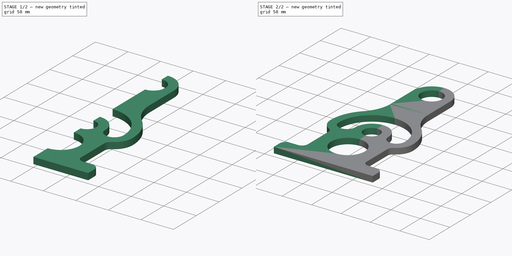
[diagram: build sequence overview — one tinted view per stage of 2, left to right]
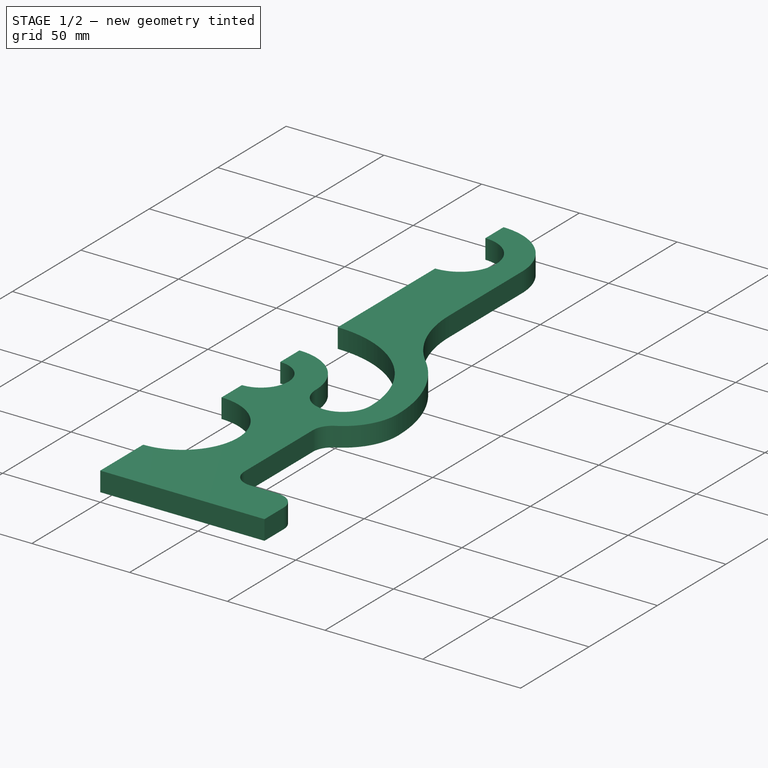
[diagram: stage 1 of 2 — iso view after this stage's code; geometry added in this stage tinted green]
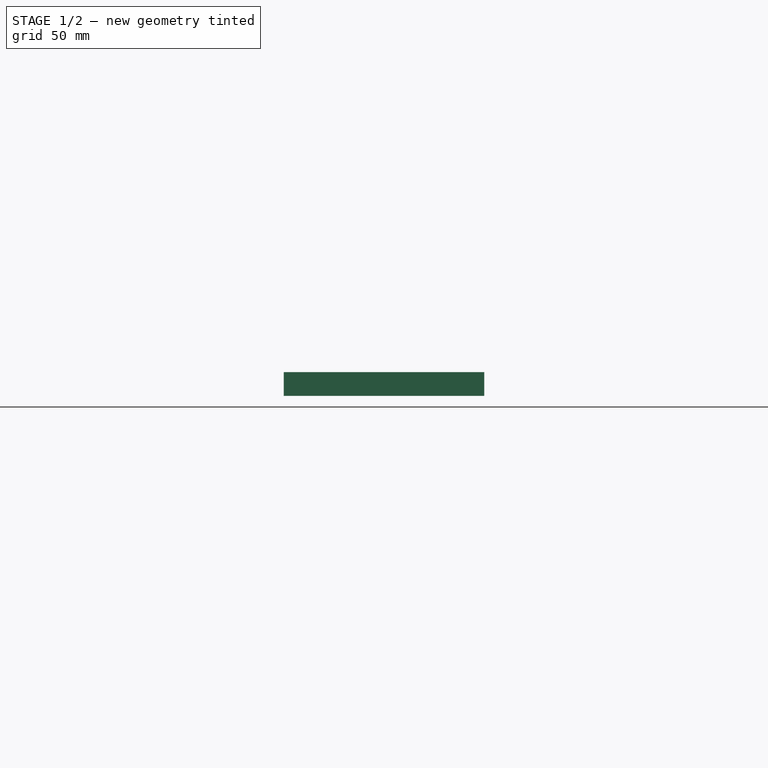
[diagram: stage 1 of 2 — front view after this stage's code; geometry added in this stage tinted green]
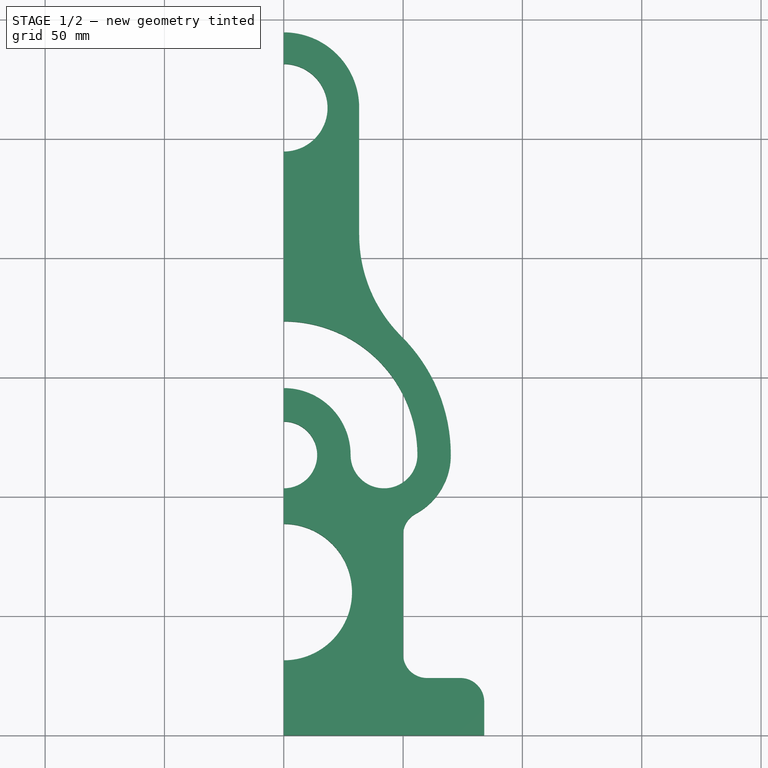
[diagram: stage 1 of 2 — top view after this stage's code; geometry added in this stage tinted green]
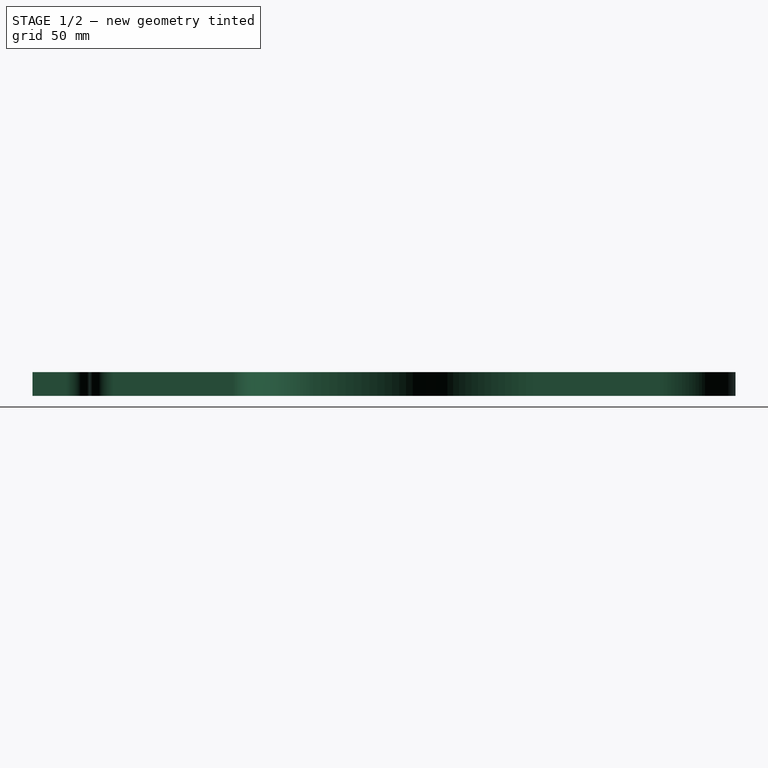
[diagram: stage 1 of 2 — right view after this stage's code; geometry added in this stage tinted green]
FCSTD DOCUMENT  (FreeCAD 0.18R14796 (Git))
Label: Page_16_Exercise 2D -08
License: All rights reserved
LicenseURL: http://en.wikipedia.org/wiki/All_rights_reserved
objects: Sketcher::SketchObject×1, PartDesign::Pad×1, PartDesign::Mirrored×1, PartDesign::Body×1
note: 5 computed .brp shape members not serialized (recipe doc carries the construction recipe); baked Part::Feature solids carry a one-line shape summary decoded from their .brp

FEATURE [Sketcher::SketchObject] Sketch
  MapMode = 5
  Support = -> [XY_Plane]
  expr: Constraints[19] = 168 / 2
  sketch-geometry (25):
    g0: LineSegment StartX=0 StartY=0 StartZ=0 EndX=84 EndY=0 EndZ=0
    g1: LineSegment StartX=84 StartY=0 StartZ=0 EndX=84 EndY=14 EndZ=0
    g2: LineSegment StartX=60 StartY=24 StartZ=0 EndX=74 EndY=24 EndZ=0
    g3: LineSegment StartX=50 StartY=34 StartZ=0 EndX=50 EndY=84.0336 EndZ=0
    g4: ArcOfCircle CenterX=0 CenterY=117.5 CenterZ=0 NormalX=0 NormalY=0 NormalZ=1 AngleXU=0 Radius=70 StartAngle=0 EndAngle=0.788915
    g5: ArcOfCircle CenterX=91.6 CenterY=209.747 CenterZ=0 NormalX=0 NormalY=0 NormalZ=1 AngleXU=0 Radius=60 StartAngle=3.14159 EndAngle=3.93051
    g6: LineSegment StartX=31.6 StartY=209.747 StartZ=0 EndX=31.6 EndY=263 EndZ=0
    g7: ArcOfCircle CenterX=0 CenterY=263 CenterZ=0 NormalX=0 NormalY=0 NormalZ=1 AngleXU=0 Radius=31.6 StartAngle=0 EndAngle=1.5708
    g8: LineSegment StartX=0 StartY=294.6 StartZ=0 EndX=0 EndY=281.35 EndZ=0
    g9: ArcOfCircle CenterX=0 CenterY=263 CenterZ=0 NormalX=0 NormalY=0 NormalZ=1 AngleXU=0 Radius=18.35 StartAngle=4.71239 EndAngle=7.85398
    g10: LineSegment StartX=0 StartY=244.65 StartZ=0 EndX=0 EndY=173.5 EndZ=0
    g11: ArcOfCircle CenterX=0 CenterY=117.5 CenterZ=0 NormalX=0 NormalY=0 NormalZ=1 AngleXU=0 Radius=56 StartAngle=0 EndAngle=1.5708
    g12: ArcOfCircle CenterX=42 CenterY=117.5 CenterZ=0 NormalX=0 NormalY=0 NormalZ=1 AngleXU=0 Radius=14 StartAngle=3.14159 EndAngle=6.28319
    g13: ArcOfCircle CenterX=0 CenterY=117.5 CenterZ=0 NormalX=0 NormalY=0 NormalZ=1 AngleXU=0 Radius=28 StartAngle=0 EndAngle=1.5708
    g14: LineSegment StartX=0 StartY=145.5 StartZ=0 EndX=0 EndY=131.5 EndZ=0
    g15: ArcOfCircle CenterX=0 CenterY=117.5 CenterZ=0 NormalX=0 NormalY=0 NormalZ=1 AngleXU=0 Radius=14 StartAngle=4.71239 EndAngle=7.85398
    g16: LineSegment StartX=0 StartY=103.5 StartZ=0 EndX=0 EndY=88.6 EndZ=0
    g17: ArcOfCircle CenterX=0 CenterY=60 CenterZ=0 NormalX=0 NormalY=0 NormalZ=1 AngleXU=0 Radius=28.6 StartAngle=4.71239 EndAngle=7.85398
    g18: LineSegment StartX=0 StartY=31.4 StartZ=0 EndX=0 EndY=0 EndZ=0
    g19: LineSegment [constr] StartX=0 StartY=117.5 StartZ=0 EndX=70 EndY=117.5 EndZ=0
    g20: ArcOfCircle CenterX=60 CenterY=34 CenterZ=0 NormalX=0 NormalY=0 NormalZ=1 AngleXU=0 Radius=10 StartAngle=3.14159 EndAngle=4.71239
    g21: ArcOfCircle CenterX=74 CenterY=14 CenterZ=0 NormalX=0 NormalY=0 NormalZ=1 AngleXU=0 Radius=10 StartAngle=0 EndAngle=1.5708
    g22: LineSegment [constr] StartX=28.6 StartY=60 StartZ=0 EndX=50 EndY=60 EndZ=0
    g23: ArcOfCircle CenterX=60 CenterY=84.0336 CenterZ=0 NormalX=0 NormalY=0 NormalZ=1 AngleXU=0 Radius=10 StartAngle=2.06427 EndAngle=3.14159
    g24: ArcOfCircle CenterX=42 CenterY=117.5 CenterZ=0 NormalX=0 NormalY=0 NormalZ=1 AngleXU=0 Radius=28 StartAngle=5.20586 EndAngle=6.28319
  constraints (70):
    c: Horizontal(g0)
    c: Coincident(g0,g1)
    c: Vertical(g1)
    c: Tangent(g4,g5) = 1.5708
    c: Tangent(g5,g6) = 1.5708
    c: Tangent(g6,g7) = -1.5708
    c: Coincident(g7,g8)
    c: Coincident(g9,g10)
    c: Tangent(g11,g12) = -1.5708
    c: Tangent(g12,g13) = 1.5708
    c: Coincident(g13,g14)
    c: Vertical(g16)
    c: Perpendicular(g16,g17) = 4.71239
    c: Vertical(g18)
    c: Coincident(g0,g18)
    c: Diameter(g17) = 57.2
    c: DistanceY(g-1,g17) = 60
    c: Coincident(g0,g-1)
    c: Horizontal(g2)
    c: DistanceX(g0,g0) = 84
    c: Vertical(g3)
    c: Coincident(g15,g13)
    c: Coincident(g15,g11)
    c: PointOnObject(g11,g-2)
    c: Vertical(g14)
    c: Coincident(g16,g15)
    c: Coincident(g17,g18)
    c: PointOnObject(g16,g-2)
    c: PointOnObject(g14,g-2)
    c: DistanceY(g17,g11) = 57.5
    c: Coincident(g19,g11)
    c: Coincident(g15,g14)
    c: PointOnObject(g10,g-2)
    c: Vertical(g10)
    c: PointOnObject(g12,g19)
    c: Radius(g15) = 14
    c: Coincident(g11,g10)
    c: DistanceY(g13,g10) = 28
    c: DistanceY(g14,g14) = 14
    c: Coincident(g4,g11)
    c: Radius(g5) = 60
    c: Vertical(g6)
    c: Radius(g7) = 31.6
    c: Vertical(g8)
    c: Perpendicular(g7,g8)
    c: PointOnObject(g8,g-2)
    c: Coincident(g9,g8)
    c: Diameter(g9) = 36.7
    c: Coincident(g7,g9)
    c: DistanceY(g4,g7) = 145.5
    c: Tangent(g21,g2) = 1.5708
    c: Tangent(g21,g1) = -1.5708
    c: Tangent(g20,g3) = 1.5708
    c: Radius(g20) = 10
    c: Equal(g20,g21)
    c: PointOnObject(g22,g17)
    c: PointOnObject(g22,g3)
    c: Horizontal(g22)
    c: Perpendicular(g17,g22)
    c: DistanceX(g22,g22) = 21.4
    c: PointOnObject(g19,g4)
    c: Tangent(g3,g23) = 1.5708
    c: Tangent(g23,g24) = 1.5708
    c: Tangent(g4,g24) = -1.5708
    c: Coincident(g24,g12)
    c: Horizontal(g19)
    c: DistanceX(g11,g4) = 14
    c: Equal(g20,g23)
    c: Tangent(g2,g20) = -1.5708
    c: DistanceY(g0,g2) = 24
FEATURE [PartDesign::Pad] Pad
  Length = 10
  Length2 = 100
  Profile = -> Sketch
  Refine = true
  Type = 0
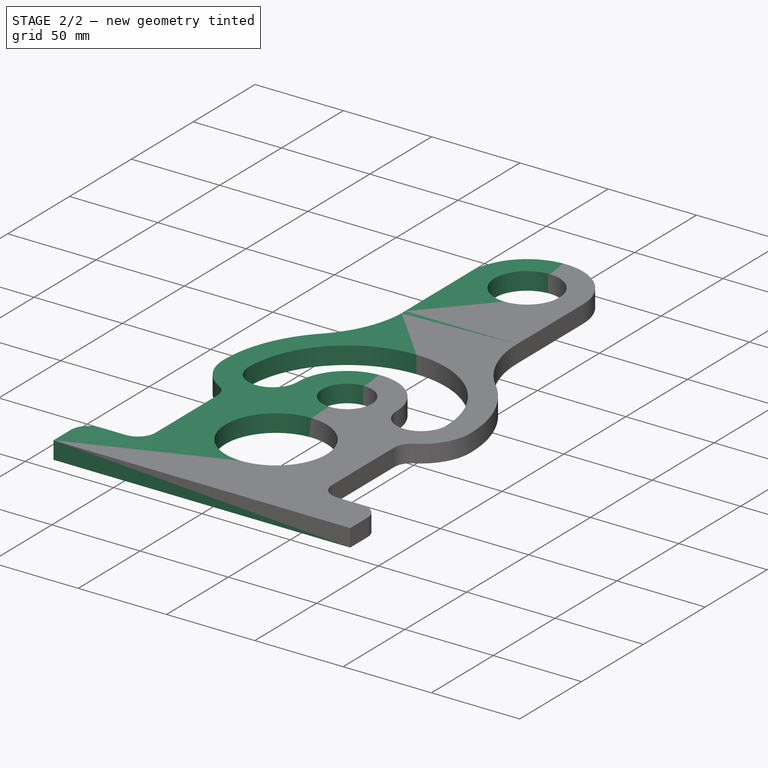
[diagram: stage 2 of 2 — iso view after this stage's code; geometry added in this stage tinted green]
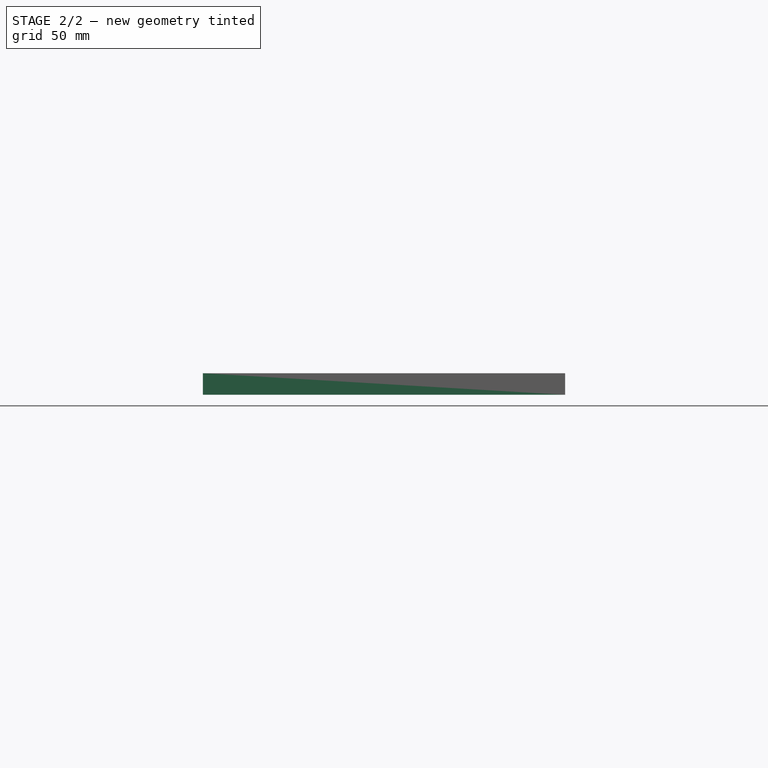
[diagram: stage 2 of 2 — front view after this stage's code; geometry added in this stage tinted green]
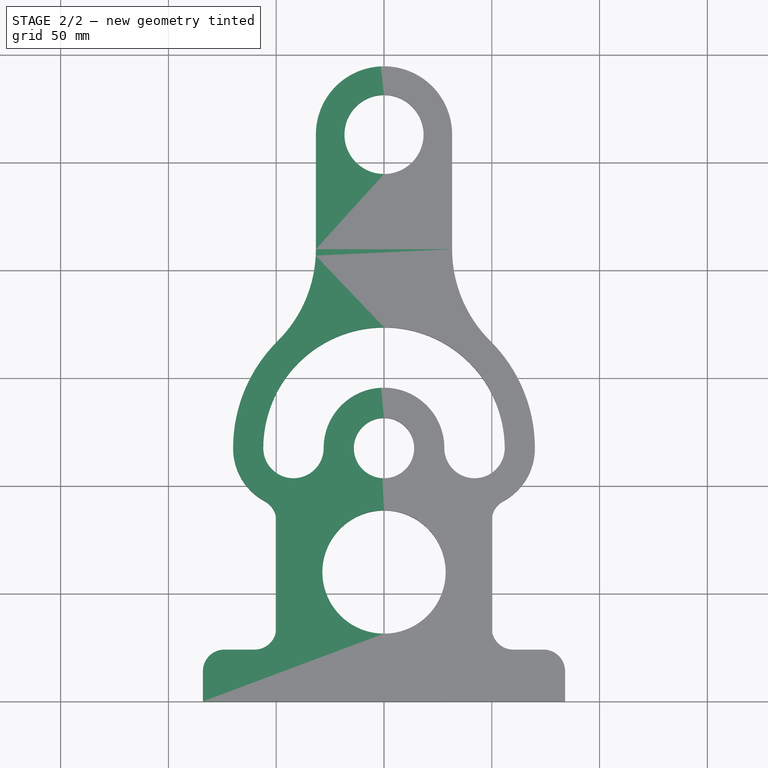
[diagram: stage 2 of 2 — top view after this stage's code; geometry added in this stage tinted green]
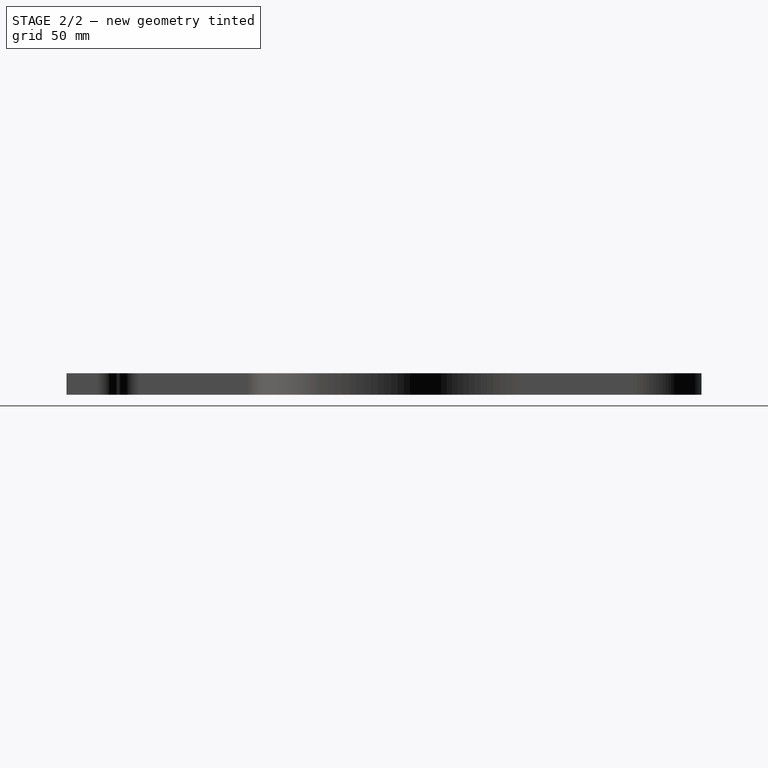
[diagram: stage 2 of 2 — right view after this stage's code; geometry added in this stage tinted green]
FEATURE [PartDesign::Mirrored] Mirrored
  BaseFeature = -> Pad
  MirrorPlane = -> Sketch [V_Axis]
  Originals = -> [Pad]
  Refine = true
FEATURE [PartDesign::Body] Body
  Group = -> [Sketch,Pad,Mirrored]
  Origin = -> Origin
  Tip = -> Mirrored
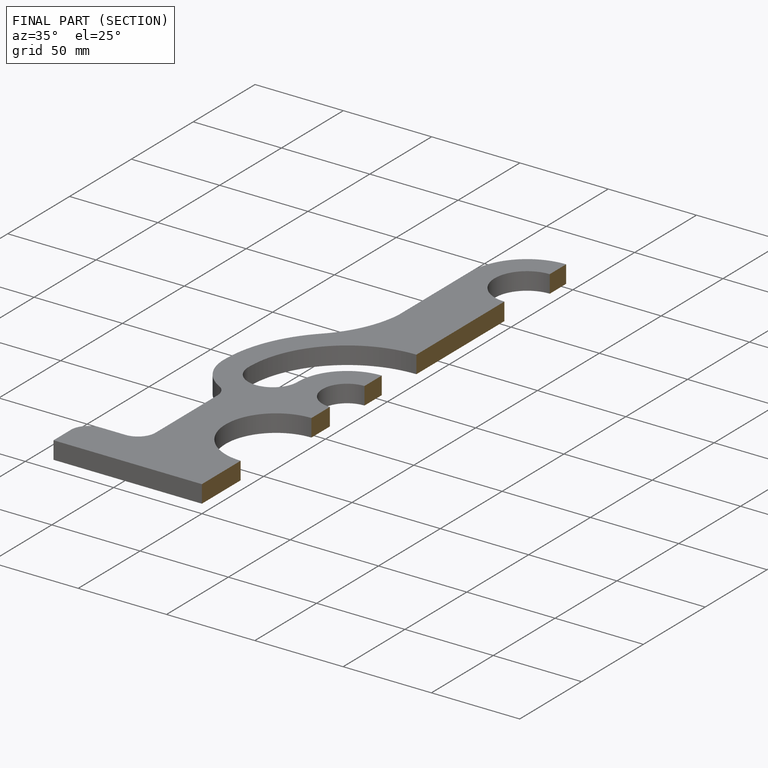
[diagram: finished part — half-section view (interior)]
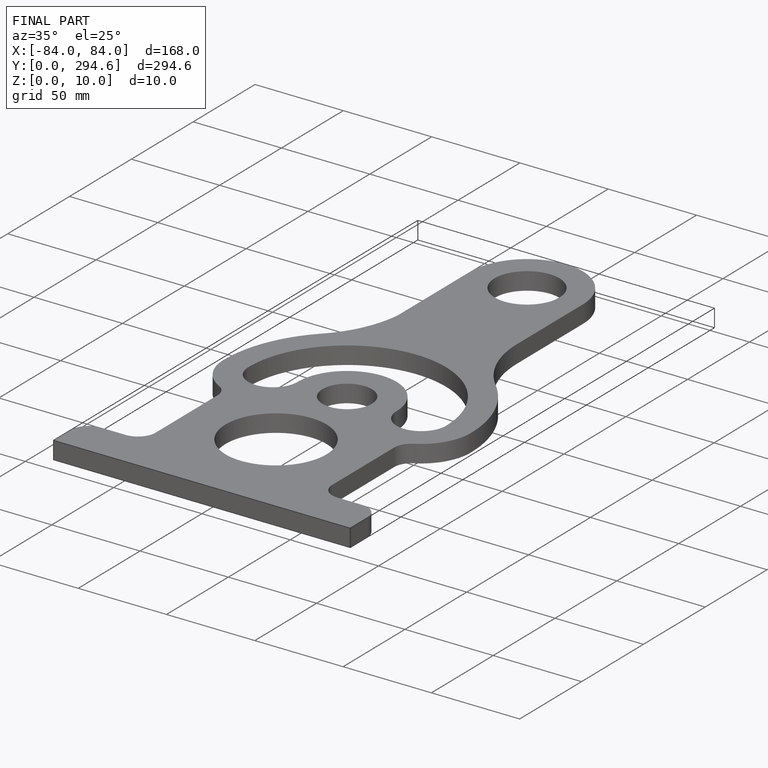
[diagram: finished part — iso view with bounding-box wireframe]
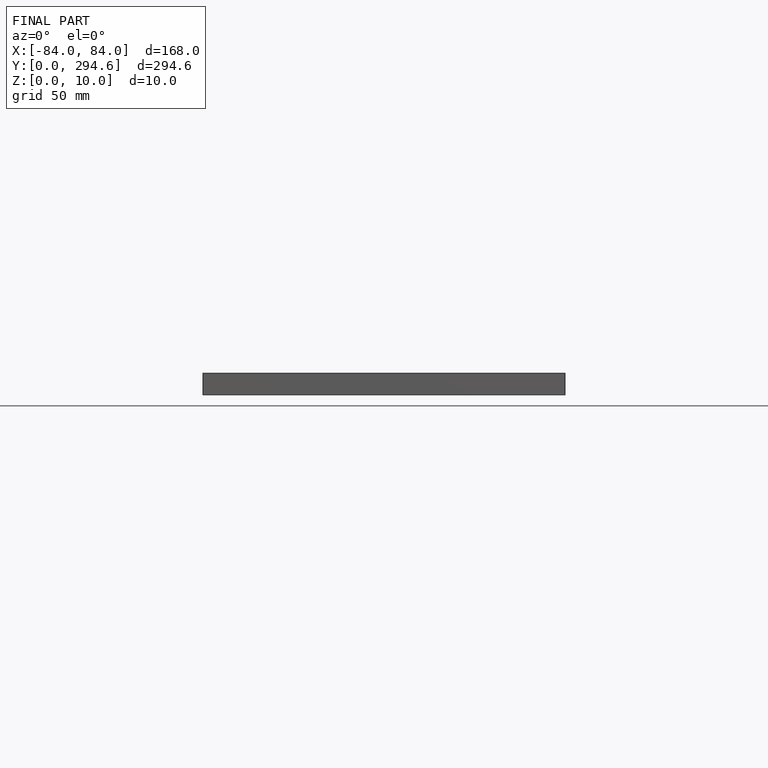
[diagram: finished part — front view with bounding-box wireframe]
